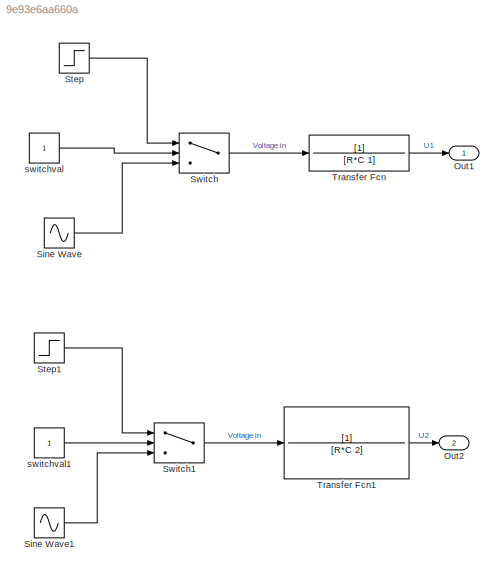
MODEL slx_9e93e6aa660a
KIND model
CONFIG AbsTol = auto
CONFIG EnableMultiTasking = off
CONFIG FixedStep = auto
CONFIG MaxStep = 0.001
CONFIG MinStep = auto
CONFIG RelTol = 1e-3
CONFIG SampleTimeConstraint = Unconstrained
CONFIG SolverName = ode45
CONFIG StartTime = 0.0
CONFIG StopTime = 0.3
BLOCK [Outport] Out1
BLOCK [Outport] Out2
  Port = 2
BLOCK [Sin] Sine Wave
  Frequency = 10
  SampleTime = 0
BLOCK [Sin] Sine Wave1
  Frequency = 10
  SampleTime = 0
BLOCK [Step] Step
  After = 12
  SampleTime = 0
  Time = 0
BLOCK [Step] Step1
  After = 12
  SampleTime = 0
  Time = 0.2
BLOCK [Switch] Switch
  Criteria = u2 > Threshold
  InputSameDT = off
  SaturateOnIntegerOverflow = off
BLOCK [Switch] Switch1
  Criteria = u2 > Threshold
  InputSameDT = off
  SaturateOnIntegerOverflow = off
BLOCK [TransferFcn] Transfer Fcn
  Denominator = [R*C 1]
BLOCK [TransferFcn] Transfer Fcn1
  Denominator = [R*C 2]
BLOCK [Constant] switchval
BLOCK [Constant] switchval1
LINE Sine Wave1:1 -> Switch1:3
LINE Sine Wave:1 -> Switch:3
LINE Step1:1 -> Switch1:1
LINE Step:1 -> Switch:1
LINE Switch1:1 -> Transfer Fcn1:1
LINE Switch:1 -> Transfer Fcn:1
LINE Transfer Fcn1:1 -> Out2:1
LINE Transfer Fcn:1 -> Out1:1
LINE switchval1:1 -> Switch1:2
LINE switchval:1 -> Switch:2
